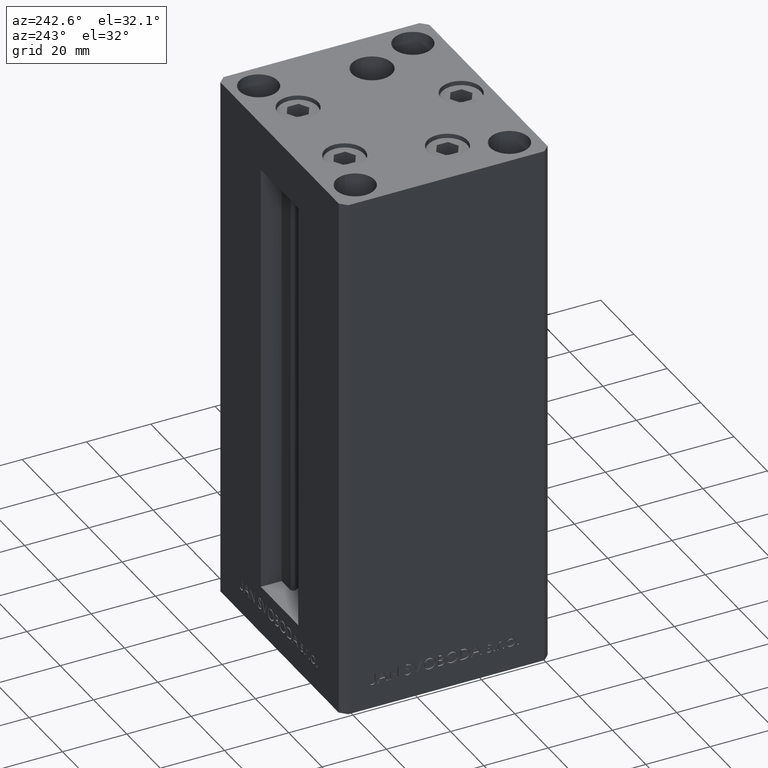
[diagram: clean part render]
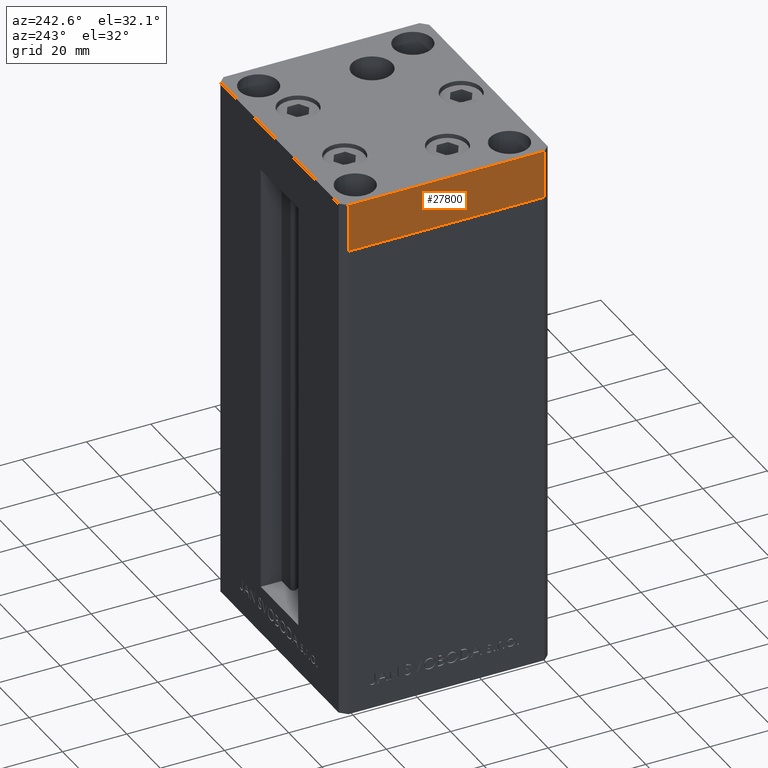
[diagram: same view with one face highlighted and labeled with its STEP entity id]
A machine part, auxiliary view. The second image highlights one B-rep face of the part: STEP entity #27800.
In plain terms, the highlighted planar face has unit normal (-1, -0, 0).
Its self-contained STEP definition (entity closure, byte-faithful):
#218 = VECTOR ( 'NONE', #43419, 1000.000000000000000 ) ;
#1842 = CARTESIAN_POINT ( 'NONE',  ( -37.50000000000001421, 30.49999999999998579, -15.00000000000000000 ) ) ;
#3364 = ORIENTED_EDGE ( 'NONE', *, *, #37841, .T. ) ;
#3481 = CARTESIAN_POINT ( 'NONE',  ( -37.49999999999998579, -30.50000000000001421, -15.00000000000000000 ) ) ;
#3490 = EDGE_CURVE ( 'NONE', #19556, #44039, #11995, .T. ) ;
#6710 = CARTESIAN_POINT ( 'NONE',  ( -37.49999999999998579, -30.50000000000001421, -15.00000000000000000 ) ) ;
#8046 = DIRECTION ( 'NONE',  ( 4.550094363217855288E-16, -1.000000000000000000, 0.000000000000000000 ) ) ;
#10188 = AXIS2_PLACEMENT_3D ( 'NONE', #11319, #34009, #8046 ) ;
#11319 = CARTESIAN_POINT ( 'NONE',  ( -37.50000000000001421, 30.49999999999998579, -15.00000000000000000 ) ) ;
#11995 = LINE ( 'NONE', #35677, #218 ) ;
#12425 = CARTESIAN_POINT ( 'NONE',  ( -37.50000000000001421, 30.49999999999998579, -15.00000000000000000 ) ) ;
#14725 = ORIENTED_EDGE ( 'NONE', *, *, #3490, .T. ) ;
#15454 = CARTESIAN_POINT ( 'NONE',  ( -37.50000000000001421, 30.49999999999998579, 0.000000000000000000 ) ) ;
#19556 = VERTEX_POINT ( 'NONE', #1842 ) ;
#20263 = ORIENTED_EDGE ( 'NONE', *, *, #37953, .F. ) ;
#22673 = LINE ( 'NONE', #3481, #48003 ) ;
#24930 = LINE ( 'NONE', #40137, #48210 ) ;
#27800 = ADVANCED_FACE ( 'NONE', ( #34493 ), #45465, .T. ) ;
#29250 = VERTEX_POINT ( 'NONE', #15454 ) ;
#31830 = EDGE_LOOP ( 'NONE', ( #41973, #20263, #14725, #3364 ) ) ;
#34009 = DIRECTION ( 'NONE',  ( -1.000000000000000000, -4.550094363217855288E-16, 0.000000000000000000 ) ) ;
#34493 = FACE_OUTER_BOUND ( 'NONE', #31830, .T. ) ;
#35677 = CARTESIAN_POINT ( 'NONE',  ( -37.50000000000001421, 30.49999999999998579, -15.00000000000000000 ) ) ;
#36390 = DIRECTION ( 'NONE',  ( 4.550094363217855288E-16, -1.000000000000000000, 0.000000000000000000 ) ) ;
#36832 = VECTOR ( 'NONE', #38613, 1000.000000000000000 ) ;
#37841 = EDGE_CURVE ( 'NONE', #44039, #38300, #22673, .T. ) ;
#37953 = EDGE_CURVE ( 'NONE', #19556, #29250, #46590, .T. ) ;
#38300 = VERTEX_POINT ( 'NONE', #47266 ) ;
#38613 = DIRECTION ( 'NONE',  ( 0.000000000000000000, 0.000000000000000000, 1.000000000000000000 ) ) ;
#40137 = CARTESIAN_POINT ( 'NONE',  ( -37.50000000000001421, 30.49999999999998579, 0.000000000000000000 ) ) ;
#41973 = ORIENTED_EDGE ( 'NONE', *, *, #44019, .F. ) ;
#43419 = DIRECTION ( 'NONE',  ( 4.550094363217855288E-16, -1.000000000000000000, 0.000000000000000000 ) ) ;
#44019 = EDGE_CURVE ( 'NONE', #29250, #38300, #24930, .T. ) ;
#44039 = VERTEX_POINT ( 'NONE', #6710 ) ;
#45112 = DIRECTION ( 'NONE',  ( 0.000000000000000000, 0.000000000000000000, 1.000000000000000000 ) ) ;
#45465 = PLANE ( 'NONE',  #10188 ) ;
#46590 = LINE ( 'NONE', #12425, #36832 ) ;
#47266 = CARTESIAN_POINT ( 'NONE',  ( -37.49999999999998579, -30.50000000000001421, 0.000000000000000000 ) ) ;
#48003 = VECTOR ( 'NONE', #45112, 1000.000000000000000 ) ;
#48210 = VECTOR ( 'NONE', #36390, 1000.000000000000000 ) ;